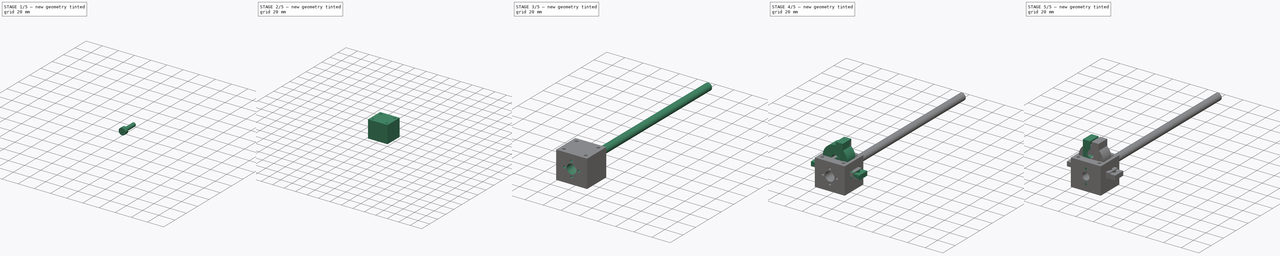
[diagram: build sequence overview — one tinted view per stage of 5, left to right]
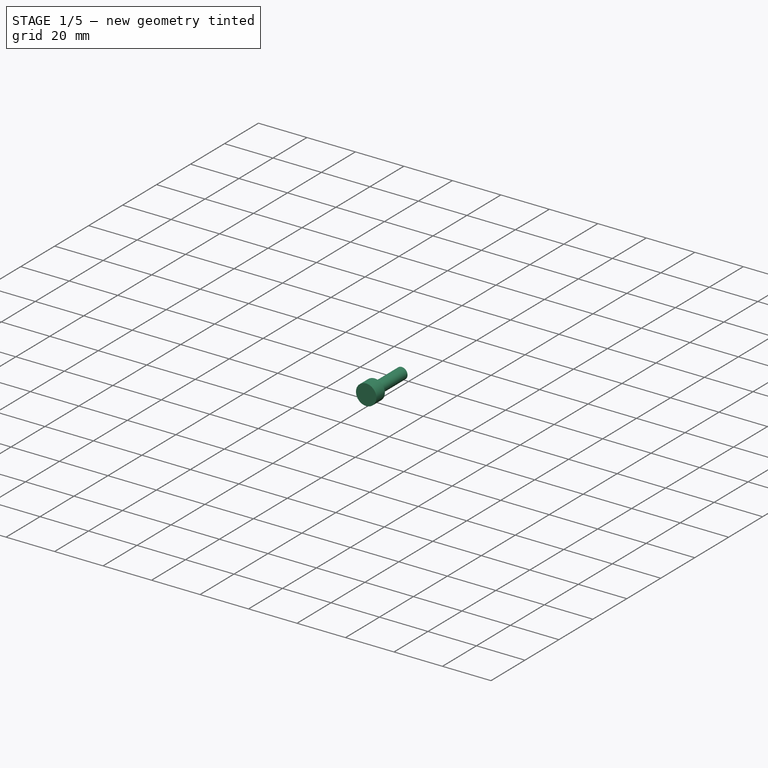
[diagram: stage 1 of 5 — iso view after this stage's code; geometry added in this stage tinted green]
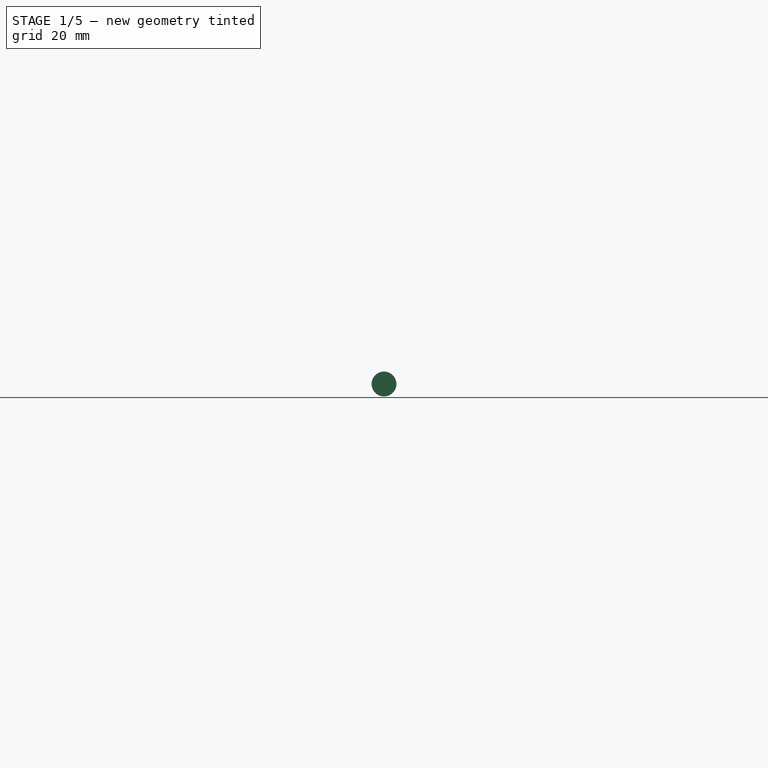
[diagram: stage 1 of 5 — front view after this stage's code; geometry added in this stage tinted green]
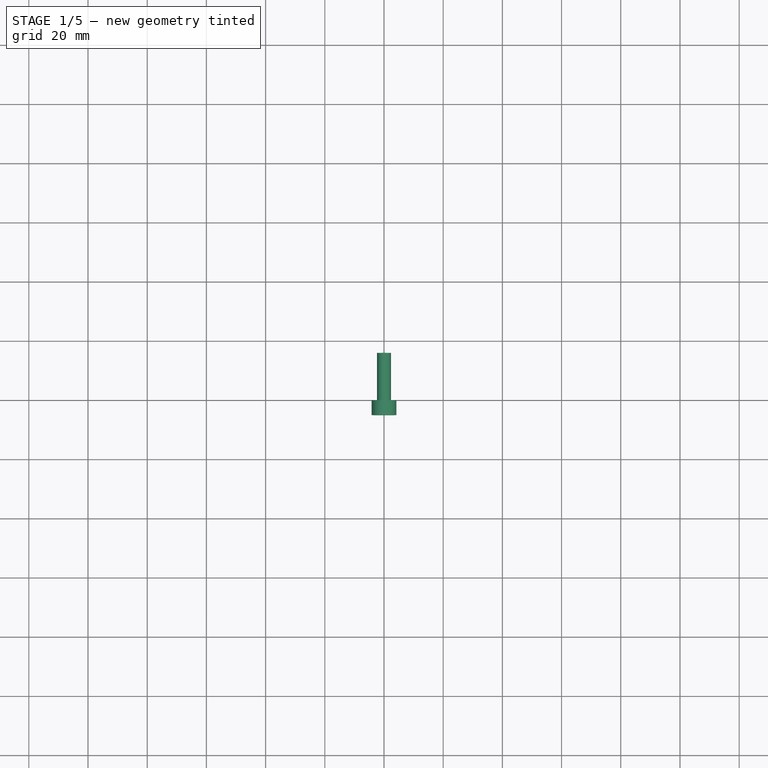
[diagram: stage 1 of 5 — top view after this stage's code; geometry added in this stage tinted green]
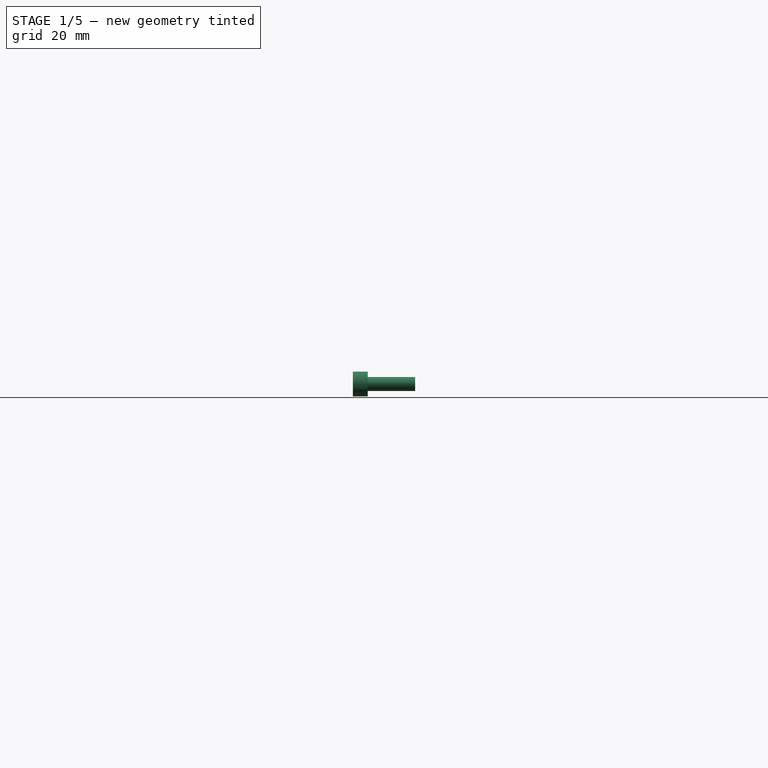
[diagram: stage 1 of 5 — right view after this stage's code; geometry added in this stage tinted green]
FCSTD DOCUMENT  (FreeCAD 1.0R39319 (Git))
Label: basic-parts
License: CERN Open Hardware Licence permissive
LicenseURL: https://cern-ohl.web.cern.ch/
objects: Sketcher::SketchObject×19, PartDesign::Body×12, App::Part×10, Spreadsheet::Sheet×9, PartDesign::Revolution×8, PartDesign::Pad×4, PartDesign::Hole×4, PartDesign::Mirrored×3, PartDesign::Pocket×3, Part::Cylinder×2
note: 115 computed .brp shape members not serialized (recipe doc carries the construction recipe); baked Part::Feature solids carry a one-line shape summary decoded from their .brp

FEATURE [PartDesign::Body] Body231  label="M3 hex screw 12mm"
  AllowCompound = false
  Group = -> [Sketch732,Revolution002]
  Origin = -> Origin287
  Tip = -> Revolution002
FEATURE [Spreadsheet::Sheet] Spreadsheet013  label="M3 hex screw params"
  cells = A1='shaft diameter; B1==2.8 mm; A2='head height; B2==3 mm; A3='head width; B3==5.5 mm
FEATURE [Sketcher::SketchObject] Sketch734
  ArcFitTolerance = 1e-06
  AttachmentSupport = -> [XY_Plane295]
  FullyConstrained = true
  MakeInternals = false
  MapMode = 5
  expr: Constraints[14] = <<M4 hex screw params>>.B1 / 2
  expr: Constraints[16] = <<M4 hex screw params>>.B3 / 2
  expr: Constraints[17] = <<M4 hex screw params>>.B2
  sketch-geometry (6):
    g0: LineSegment StartX=0 StartY=-4 StartZ=0 EndX=0 EndY=10 EndZ=0
    g1: LineSegment StartX=0 StartY=10 StartZ=0 EndX=1.95 EndY=10 EndZ=0
    g2: LineSegment StartX=1.95 StartY=10 StartZ=0 EndX=1.95 EndY=0 EndZ=0
    g3: LineSegment StartX=1.95 StartY=0 StartZ=0 EndX=3.375 EndY=0 EndZ=0
    g4: LineSegment StartX=3.375 StartY=0 StartZ=0 EndX=3.375 EndY=-4 EndZ=0
    g5: LineSegment StartX=3.375 StartY=-4 StartZ=0 EndX=0 EndY=-4 EndZ=0
  constraints (18):
    c: PointOnObject(g0,g-2)
    c: PointOnObject(g0,g-2)
    c: Coincident(g1,g0)
    c: Horizontal(g1)
    c: Coincident(g2,g1)
    c: PointOnObject(g2,g-1)
    c: Vertical(g2)
    c: Coincident(g3,g2)
    c: PointOnObject(g3,g-1)
    c: Coincident(g4,g3)
    c: Coincident(g5,g4)
    c: Coincident(g5,g0)
    c: Horizontal(g5)
    c: Vertical(g4)
    c: DistanceX(g1) = 1.95
    c: Distance(g2) = 10
    c: Distance(g5) = 3.375
    c: Distance(g4) = 4
FEATURE [PartDesign::Revolution] Revolution003
  Angle = 360
  Angle2 = 60
  Axis = (0,1,0)
  Base = (0,0,0)
  Profile = -> Sketch734
  ReferenceAxis = -> Sketch734 [V_Axis]
  Refine = true
  Reversed = true
  Suppressed = false
  Type = 0
FEATURE [PartDesign::Body] Body235  label="M4 hex screw 10mm"
  AllowCompound = false
  Group = -> [Sketch734,Revolution003]
  Origin = -> Origin295
  Tip = -> Revolution003
FEATURE [Spreadsheet::Sheet] Spreadsheet014  label="M4 hex screw params"
  cells = A1='shaft diameter; B1==3.9 mm; A2='head height; B2==4 mm; A3='head width; B3==6.75 mm
FEATURE [App::Part] Part025  label="M4 hex screw"
  Group = -> [Body235,Spreadsheet014]
  Origin = -> Origin293
FEATURE [Sketcher::SketchObject] Sketch735
  ArcFitTolerance = 1e-06
  AttachmentSupport = -> [XY_Plane296]
  FullyConstrained = true
  MakeInternals = false
  MapMode = 5
  expr: Constraints[14] = <<M5 hex screw params>>.B1 / 2
  expr: Constraints[16] = <<M5 hex screw params>>.B3 / 2
  expr: Constraints[17] = <<M5 hex screw params>>.B2
  sketch-geometry (6):
    g0: LineSegment StartX=0 StartY=-5 StartZ=0 EndX=0 EndY=16 EndZ=0
    g1: LineSegment StartX=0 StartY=16 StartZ=0 EndX=2.35 EndY=16 EndZ=0
    g2: LineSegment StartX=2.35 StartY=16 StartZ=0 EndX=2.35 EndY=0 EndZ=0
    g3: LineSegment StartX=2.35 StartY=0 StartZ=0 EndX=4.2 EndY=0 EndZ=0
    g4: LineSegment StartX=4.2 StartY=0 StartZ=0 EndX=4.2 EndY=-5 EndZ=0
    g5: LineSegment StartX=4.2 StartY=-5 StartZ=0 EndX=0 EndY=-5 EndZ=0
  constraints (18):
    c: PointOnObject(g0,g-2)
    c: PointOnObject(g0,g-2)
    c: Coincident(g1,g0)
    c: Horizontal(g1)
    c: Coincident(g2,g1)
    c: PointOnObject(g2,g-1)
    c: Vertical(g2)
    c: Coincident(g3,g2)
    c: PointOnObject(g3,g-1)
    c: Coincident(g4,g3)
    c: Coincident(g5,g4)
    c: Coincident(g5,g0)
    c: Horizontal(g5)
    c: Vertical(g4)
    c: DistanceX(g1) = 2.35
    c: Distance(g2) = 16
    c: Distance(g5) = 4.2
    c: Distance(g4) = 5
FEATURE [PartDesign::Revolution] Revolution004
  Angle = 360
  Angle2 = 60
  Axis = (0,1,0)
  Base = (0,0,0)
  Profile = -> Sketch735
  ReferenceAxis = -> Sketch735 [V_Axis]
  Refine = true
  Reversed = true
  Suppressed = false
  Type = 0
FEATURE [PartDesign::Body] Body236  label="M5 hex screw 16mm"
  AllowCompound = false
  Group = -> [Sketch735,Revolution004]
  Origin = -> Origin296
  Tip = -> Revolution004
FEATURE [Spreadsheet::Sheet] Spreadsheet015  label="M5 hex screw params"
  cells = A1='shaft diameter; B1==4.7 mm; A2='head height; B2==5 mm; A3='head width; B3==8.4 mm
FEATURE [App::Part] Part026  label="M5 hex screw"
  Group = -> [Body236,Spreadsheet015]
  Origin = -> Origin294
FEATURE [Sketcher::SketchObject] Sketch736
  ArcFitTolerance = 1e-06
  AttachmentSupport = -> [XY_Plane297]
  FullyConstrained = true
  MakeInternals = false
  MapMode = 5
  expr: Constraints[14] = <<M2.5 hex screw params>>.B1 / 2
  expr: Constraints[16] = <<M2.5 hex screw params>>.B3 / 2
  expr: Constraints[17] = <<M2.5 hex screw params>>.B2
  sketch-geometry (6):
    g0: LineSegment StartX=0 StartY=-2.5 StartZ=0 EndX=0 EndY=12 EndZ=0
    g1: LineSegment StartX=0 StartY=12 StartZ=0 EndX=1.15 EndY=12 EndZ=0
    g2: LineSegment StartX=1.15 StartY=12 StartZ=0 EndX=1.15 EndY=0 EndZ=0
    g3: LineSegment StartX=1.15 StartY=0 StartZ=0 EndX=2.15 EndY=0 EndZ=0
    g4: LineSegment StartX=2.15 StartY=0 StartZ=0 EndX=2.15 EndY=-2.5 EndZ=0
    g5: LineSegment StartX=2.15 StartY=-2.5 StartZ=0 EndX=0 EndY=-2.5 EndZ=0
  constraints (18):
    c: PointOnObject(g0,g-2)
    c: PointOnObject(g0,g-2)
    c: Coincident(g1,g0)
    c: Horizontal(g1)
    c: Coincident(g2,g1)
    c: PointOnObject(g2,g-1)
    c: Vertical(g2)
    c: Coincident(g3,g2)
    c: PointOnObject(g3,g-1)
    c: Coincident(g4,g3)
    c: Coincident(g5,g4)
    c: Coincident(g5,g0)
    c: Horizontal(g5)
    c: Vertical(g4)
    c: DistanceX(g1) = 1.15
    c: Distance(g2) = 12
    c: Distance(g5) = 2.15
    c: Distance(g4) = 2.5
FEATURE [PartDesign::Revolution] Revolution005
  Angle = 360
  Angle2 = 60
  Axis = (0,1,0)
  Base = (0,0,0)
  Profile = -> Sketch736
  ReferenceAxis = -> Sketch736 [V_Axis]
  Refine = true
  Reversed = true
  Suppressed = false
  Type = 0
FEATURE [PartDesign::Body] Body237  label="M2.5 hex screw 12mm"
  AllowCompound = false
  Group = -> [Sketch736,Revolution005]
  Origin = -> Origin297
  Tip = -> Revolution005
FEATURE [Spreadsheet::Sheet] Spreadsheet016  label="M2.5 hex screw params"
  cells = A1='shaft diameter; B1==2.3 mm; A2='head height; B2==2.5 mm; A3='head width; B3==4.3 mm
FEATURE [Sketcher::SketchObject] Sketch737
  ArcFitTolerance = 1e-06
  AttachmentSupport = -> [XY_Plane298]
  FullyConstrained = true
  MakeInternals = false
  MapMode = 5
  expr: Constraints[14] = <<M2.5 hex screw params>>.B1 / 2
  expr: Constraints[16] = <<M2.5 hex screw params>>.B3 / 2
  expr: Constraints[17] = <<M2.5 hex screw params>>.B2
  sketch-geometry (6):
    g0: LineSegment StartX=0 StartY=-2.5 StartZ=0 EndX=0 EndY=8 EndZ=0
    g1: LineSegment StartX=0 StartY=8 StartZ=0 EndX=1.15 EndY=8 EndZ=0
    g2: LineSegment StartX=1.15 StartY=8 StartZ=0 EndX=1.15 EndY=0 EndZ=0
    g3: LineSegment StartX=1.15 StartY=0 StartZ=0 EndX=2.15 EndY=0 EndZ=0
    g4: LineSegment StartX=2.15 StartY=0 StartZ=0 EndX=2.15 EndY=-2.5 EndZ=0
    g5: LineSegment StartX=2.15 StartY=-2.5 StartZ=0 EndX=0 EndY=-2.5 EndZ=0
  constraints (18):
    c: PointOnObject(g0,g-2)
    c: PointOnObject(g0,g-2)
    c: Coincident(g1,g0)
    c: Horizontal(g1)
    c: Coincident(g2,g1)
    c: PointOnObject(g2,g-1)
    c: Vertical(g2)
    c: Coincident(g3,g2)
    c: PointOnObject(g3,g-1)
    c: Coincident(g4,g3)
    c: Coincident(g5,g4)
    c: Coincident(g5,g0)
    c: Horizontal(g5)
    c: Vertical(g4)
    c: DistanceX(g1) = 1.15
    c: Distance(g2) = 8
    c: Distance(g5) = 2.15
    c: Distance(g4) = 2.5
FEATURE [PartDesign::Revolution] Revolution006
  Angle = 360
  Angle2 = 60
  Axis = (0,1,0)
  Base = (0,0,0)
  Profile = -> Sketch737
  ReferenceAxis = -> Sketch737 [V_Axis]
  Refine = true
  Reversed = true
  Suppressed = false
  Type = 0
FEATURE [PartDesign::Body] Body238  label="M2.5 hex screw 8mm"
  AllowCompound = false
  Group = -> [Sketch737,Revolution006]
  Origin = -> Origin298
  Tip = -> Revolution006
FEATURE [App::Part] Part024  label="M2.5 hex screw"
  Group = -> [Body237,Spreadsheet016,Body238]
  Origin = -> Origin292
FEATURE [Sketcher::SketchObject] Sketch738
  ArcFitTolerance = 1e-06
  AttachmentSupport = -> [XY_Plane299]
  FullyConstrained = true
  MakeInternals = false
  MapMode = 5
  expr: Constraints[14] = <<M3 hex screw params>>.B1 / 2
  expr: Constraints[16] = <<M3 hex screw params>>.B3 / 2
  expr: Constraints[17] = <<M3 hex screw params>>.B2
  sketch-geometry (6):
    g0: LineSegment StartX=0 StartY=-3 StartZ=0 EndX=0 EndY=8 EndZ=0
    g1: LineSegment StartX=0 StartY=8 StartZ=0 EndX=1.4 EndY=8 EndZ=0
    g2: LineSegment StartX=1.4 StartY=8 StartZ=0 EndX=1.4 EndY=0 EndZ=0
    g3: LineSegment StartX=1.4 StartY=0 StartZ=0 EndX=2.75 EndY=0 EndZ=0
    g4: LineSegment StartX=2.75 StartY=0 StartZ=0 EndX=2.75 EndY=-3 EndZ=0
    g5: LineSegment StartX=2.75 StartY=-3 StartZ=0 EndX=0 EndY=-3 EndZ=0
  constraints (18):
    c: PointOnObject(g0,g-2)
    c: PointOnObject(g0,g-2)
    c: Coincident(g1,g0)
    c: Horizontal(g1)
    c: Coincident(g2,g1)
    c: PointOnObject(g2,g-1)
    c: Vertical(g2)
    c: Coincident(g3,g2)
    c: PointOnObject(g3,g-1)
    c: Coincident(g4,g3)
    c: Coincident(g5,g4)
    c: Coincident(g5,g0)
    c: Horizontal(g5)
    c: Vertical(g4)
    c: DistanceX(g1) = 1.4
    c: Distance(g2) = 8
    c: Distance(g5) = 2.75
    c: Distance(g4) = 3
FEATURE [PartDesign::Revolution] Revolution007
  Angle = 360
  Angle2 = 60
  Axis = (0,1,0)
  Base = (0,0,0)
  Profile = -> Sketch738
  ReferenceAxis = -> Sketch738 [V_Axis]
  Refine = true
  Reversed = true
  Suppressed = false
  Type = 0
FEATURE [PartDesign::Body] Body239  label="M3 hex screw 8mm"
  AllowCompound = false
  Group = -> [Sketch738,Revolution007]
  Origin = -> Origin299
  Tip = -> Revolution007
FEATURE [App::Part] Part023  label="M3 hex screw"
  Group = -> [Body231,Spreadsheet013,Body239]
  Origin = -> Origin291
FEATURE [App::Part] Part  label="hex screw"
  Group = -> [Part023,Part024,Part026,Part025]
  Origin = -> Origin286
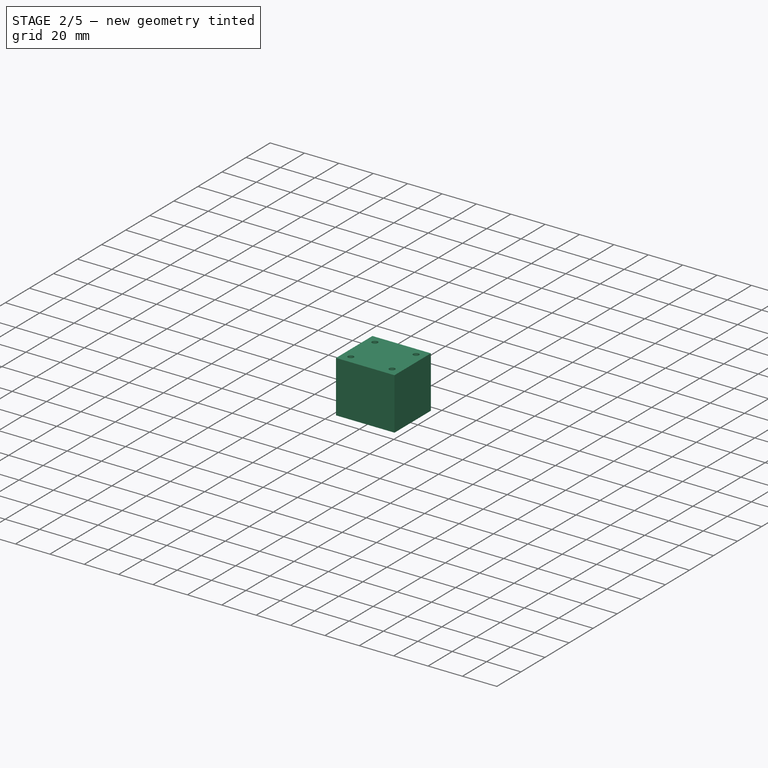
[diagram: stage 2 of 5 — iso view after this stage's code; geometry added in this stage tinted green]
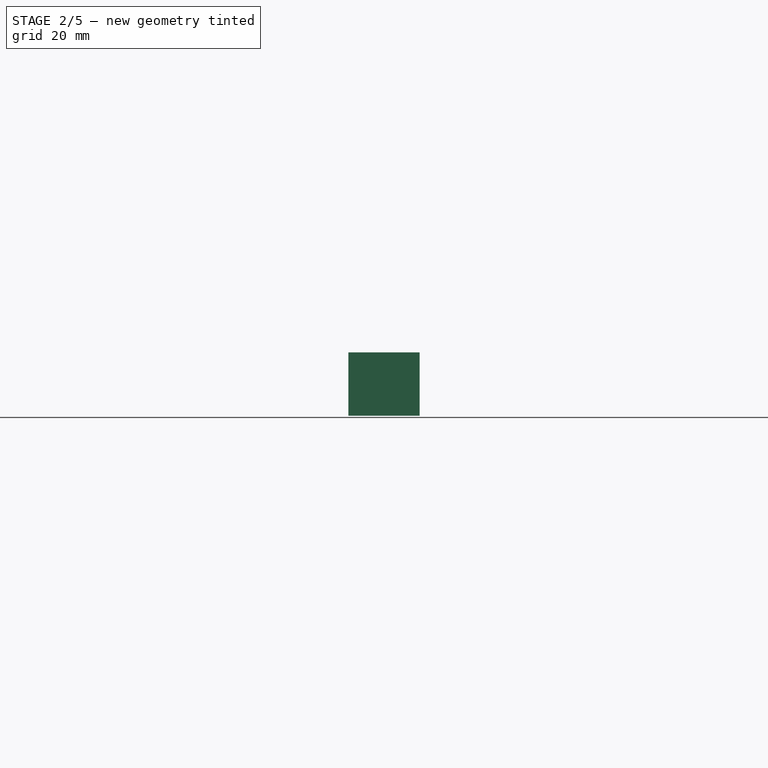
[diagram: stage 2 of 5 — front view after this stage's code; geometry added in this stage tinted green]
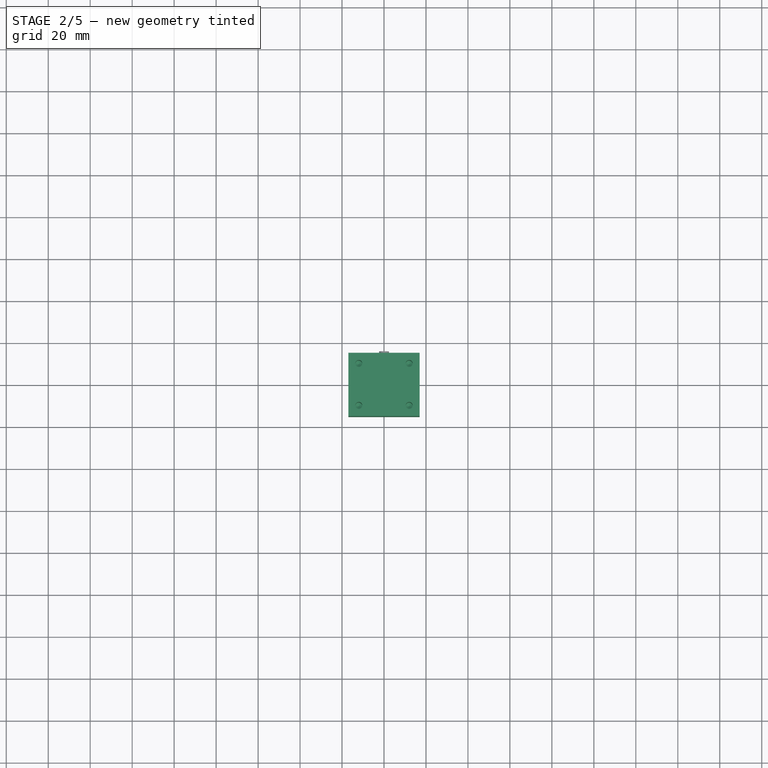
[diagram: stage 2 of 5 — top view after this stage's code; geometry added in this stage tinted green]
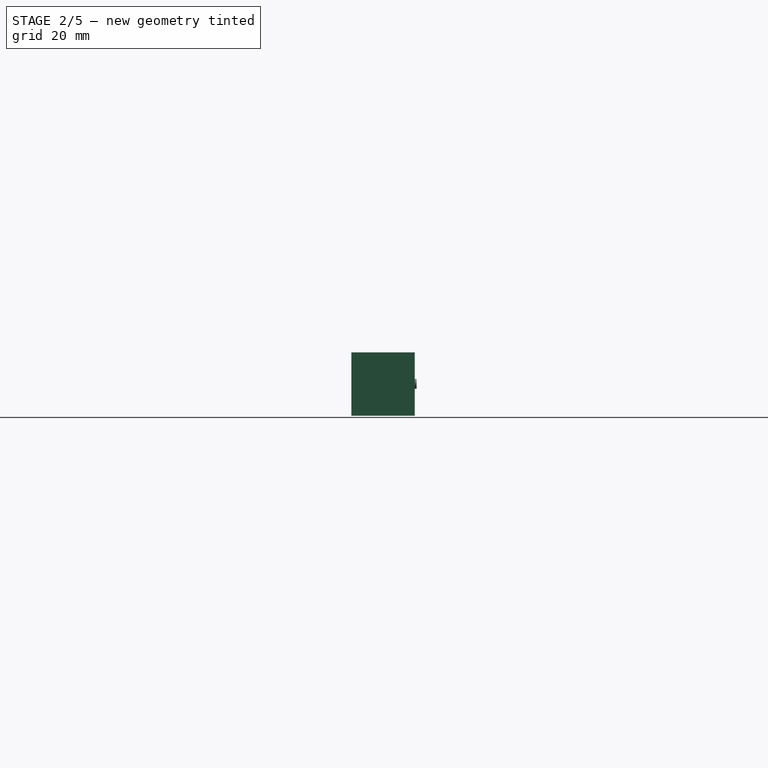
[diagram: stage 2 of 5 — right view after this stage's code; geometry added in this stage tinted green]
FEATURE [Sketcher::SketchObject] Sketch495
  ArcFitTolerance = 1e-06
  AttachmentSupport = -> [XY_Plane184]
  FullyConstrained = true
  MakeInternals = false
  MapMode = 5
  expr: Constraints[8] = <<T8 lead screw nut housing params>>.Width
  expr: Constraints[9] = <<T8 lead screw nut housing params>>.Length
  sketch-geometry (4):
    g0: LineSegment StartX=-17 StartY=15.1 StartZ=0 EndX=-17 EndY=-15.1 EndZ=0
    g1: LineSegment StartX=-17 StartY=-15.1 StartZ=0 EndX=17 EndY=-15.1 EndZ=0
    g2: LineSegment StartX=17 StartY=-15.1 StartZ=0 EndX=17 EndY=15.1 EndZ=0
    g3: LineSegment StartX=17 StartY=15.1 StartZ=0 EndX=-17 EndY=15.1 EndZ=0
  constraints (11):
    c: Coincident(g0,g1)
    c: Coincident(g1,g2)
    c: Coincident(g2,g3)
    c: Coincident(g3,g0)
    c: Vertical(g0)
    c: Vertical(g2)
    c: Horizontal(g1)
    c: Horizontal(g3)
    c: Distance(g0,g2) = 34
    c: Distance(g1,g3) = 30.2
    c: Symmetric(g0,g1,g-1)
FEATURE [PartDesign::Pad] Pad219
  Direction = (0,0,1)
  Length = 15
  Length2 = 15.2
  Profile = -> Sketch495
  ReferenceAxis = -> Sketch495 [N_Axis]
  Refine = true
  Suppressed = false
  Type = 4
  expr: Length = <<T8 lead screw nut housing params>>.TopToCenterHole
  expr: Length2 = <<T8 lead screw nut housing params>>.Height - <<T8 lead screw nut housing params>>.TopToCenterHole
FEATURE [PartDesign::Body] Body  label="SCS8UU Linear Bearing Block"
  AllowCompound = false
  Group = -> [Sketch,Pad310,Mirrored002,Sketch724,Hole]
  Origin = -> Origin001
  Tip = -> Hole
FEATURE [Sketcher::SketchObject] Sketch726
  ArcFitTolerance = 1e-06
  AttachmentSupport = -> [Pad219]
  FullyConstrained = true
  MakeInternals = false
  MapMode = 5
  Placement = pos=(0,0,15) rot=(0,0,1;0rad)
  expr: Constraints[10] = <<T8 lead screw nut housing params>>.TopHoleYD
  expr: Constraints[3] = <<T8 lead screw nut housing params>>.TopHoleDiameter
  expr: Constraints[9] = <<T8 lead screw nut housing params>>.TopHoleXD
  sketch-geometry (4):
    g0: Circle CenterX=-12 CenterY=10 CenterZ=0 NormalX=0 NormalY=0 NormalZ=1 AngleXU=0 Radius=2.1
    g1: Circle CenterX=12 CenterY=10 CenterZ=0 NormalX=0 NormalY=0 NormalZ=1 AngleXU=0 Radius=2.1
    g2: Circle CenterX=12 CenterY=-10 CenterZ=0 NormalX=0 NormalY=0 NormalZ=1 AngleXU=0 Radius=2.1
    g3: Circle CenterX=-12 CenterY=-10 CenterZ=0 NormalX=0 NormalY=0 NormalZ=1 AngleXU=0 Radius=2.1
  constraints (11):
    c: Equal(g0,g1)
    c: Equal(g0,g2)
    c: Equal(g0,g3)
    c: Diameter(g0) = 4.2
    c: Symmetric(g1,g3,g-1)
    c: Horizontal(g0,g1)
    c: Vertical(g1,g2)
    c: Horizontal(g2,g3)
    c: Vertical(g0,g3)
    c: Distance(g0,g1) = 24
    c: DistanceY(g2,g1) = 20
FEATURE [PartDesign::Hole] Hole001
  BaseFeature = -> Pad219
  CustomThreadClearance = 0
  Depth = 20
  DepthType = 0
  Diameter = 3.3
  DrillForDepth = false
  DrillPoint = 1
  DrillPointAngle = 118
  HoleCutCountersinkAngle = 90
  HoleCutCustomValues = false
  HoleCutDepth = 0
  HoleCutDiameter = 6.1
  HoleCutType = 0
  ModelThread = false
  Profile = -> Sketch726
  Refine = true
  Suppressed = false
  Tapered = false
  TaperedAngle = 90
  ThreadClass = 0
  ThreadDepth = 20
  ThreadDepthType = 0
  ThreadDirection = 0
  ThreadFit = 0
  ThreadSize = 11
  ThreadType = 1
  Threaded = true
  UseCustomThreadClearance = false
  expr: Depth = <<T8 lead screw nut housing params>>.TopHoleDepth
FEATURE [PartDesign::Body] Body150  label="T8 lead screw nut housing bracket"
  AllowCompound = false
  Group = -> [Sketch495,Pad219,Sketch726,Hole001,Sketch727,Pocket255,Sketch728,Hole002]
  Origin = -> Origin184
  Placement = pos=(0,0,16) rot=(0,0,1;0rad)
  Tip = -> Hole002
  expr: .Placement.Base.z = <<KP08 Bearing Bracket Params>>.LeadScrewZ
FEATURE [Sketcher::SketchObject] Sketch729
  ArcFitTolerance = 1e-06
  AttachmentSupport = -> [YZ_Plane]
  FullyConstrained = true
  MakeInternals = false
  MapMode = 5
  Placement = pos=(0,0,0) rot=(0.57735,0.57735,0.57735;2.0944rad)
  sketch-geometry (8):
    g0: LineSegment StartX=0 StartY=10.85 StartZ=0 EndX=3.4 EndY=10.85 EndZ=0
    g1: LineSegment StartX=3.4 StartY=10.85 StartZ=0 EndX=3.4 EndY=5 EndZ=0
    g2: LineSegment StartX=3.4 StartY=5 StartZ=0 EndX=13.4 EndY=5 EndZ=0
    g3: LineSegment StartX=13.4 StartY=5 StartZ=0 EndX=13.4 EndY=3.1 EndZ=0
    g4: LineSegment StartX=13.4 StartY=3.1 StartZ=0 EndX=-1.6 EndY=3.1 EndZ=0
    g5: LineSegment StartX=-1.6 StartY=5.1 StartZ=0 EndX=0 EndY=5.1 EndZ=0
    g6: LineSegment StartX=0 StartY=10.85 StartZ=0 EndX=0 EndY=5.1 EndZ=0
    g7: LineSegment StartX=-1.6 StartY=5.1 StartZ=0 EndX=-1.6 EndY=3.1 EndZ=0
  constraints (24):
    c: Distance(g0) = 3.4
    c: PointOnObject(g0,g-2)
    c: Horizontal(g0)
    c: Coincident(g1,g0)
    c: Vertical(g1)
    c: Coincident(g2,g1)
    c: Horizontal(g2)
    c: Coincident(g3,g2)
    c: Coincident(g4,g3)
    c: Horizontal(g4)
    c: PointOnObject(g5,g-2)
    c: Horizontal(g5)
    c: Coincident(g6,g0)
    c: Coincident(g6,g5)
    c: Coincident(g7,g5)
    c: Coincident(g7,g4)
    c: Vertical(g7)
    c: Vertical(g3)
    c: Distance(g2) = 10
    c: DistanceY(g2) = 5
    c: Distance(g4) = 15
    c: DistanceY(g5) = 5.1
    c: DistanceY(g0) = 10.85
    c: Distance(g3) = 1.9
FEATURE [PartDesign::Revolution] Revolution001
  Angle = 360
  Angle2 = 60
  Axis = (1e-16,1,-1e-16)
  Base = (0,0,0)
  Placement = pos=(0,0,0) rot=(1,1,1;2.0944rad)
  Profile = -> Sketch729
  ReferenceAxis = -> Y_Axis
  Refine = true
  Suppressed = false
  Type = 0
FEATURE [Sketcher::SketchObject] Sketch730
  ArcFitTolerance = 1e-06
  AttachmentSupport = -> [Revolution001]
  FullyConstrained = true
  MakeInternals = false
  MapMode = 5
  Placement = pos=(0,-3.6e-15,0) rot=(0.57735,0.57735,-0.57735;2.0944rad)
  expr: Constraints[8] = <<T8 lead screw nut housing params>>.BrassNutHoleDistance
  expr: Constraints[9] = <<T8 lead screw nut housing params>>.BrassNutHoleDistance
  sketch-geometry (4):
    g0: Circle CenterX=0 CenterY=8 CenterZ=0 NormalX=0 NormalY=0 NormalZ=1 AngleXU=0 Radius=1.6
    g1: Circle CenterX=8 CenterY=0 CenterZ=0 NormalX=0 NormalY=0 NormalZ=1 AngleXU=0 Radius=1.6
    g2: Circle CenterX=0 CenterY=-8 CenterZ=0 NormalX=0 NormalY=0 NormalZ=1 AngleXU=0 Radius=1.6
    g3: Circle CenterX=-8 CenterY=0 CenterZ=0 NormalX=0 NormalY=0 NormalZ=1 AngleXU=0 Radius=1.6
  constraints (10):
    c: PointOnObject(g0,g-2)
    c: PointOnObject(g1,g-1)
    c: Symmetric(g0,g2,g-1)
    c: Symmetric(g1,g3,g-2)
    c: Equal(g0,g1)
    c: Equal(g0,g2)
    c: Equal(g0,g3)
    c: Diameter(g0) = 3.2
    c: DistanceX(g1) = 8
    c: DistanceY(g0) = 8
FEATURE [PartDesign::Hole] Hole003
  BaseFeature = -> Revolution001
  CustomThreadClearance = 0
  Depth = 25
  DepthType = 0
  Diameter = 3.4
  DrillForDepth = false
  DrillPoint = 1
  DrillPointAngle = 118
  HoleCutCountersinkAngle = 90
  HoleCutCustomValues = false
  HoleCutDepth = 0
  HoleCutDiameter = 6.1
  HoleCutType = 0
  ModelThread = false
  Placement = pos=(0,0,0) rot=(1,1,1;2.0944rad)
  Profile = -> Sketch730
  Refine = true
  Suppressed = false
  Tapered = false
  TaperedAngle = 90
  ThreadClass = 0
  ThreadDepth = 25
  ThreadDepthType = 0
  ThreadDirection = 0
  ThreadFit = 0
  ThreadSize = 9
  ThreadType = 1
  Threaded = false
  UseCustomThreadClearance = false
FEATURE [PartDesign::Body] Body230  label="T8 brass nut"
  AllowCompound = false
  Group = -> [Sketch729,Revolution001,Sketch730,Hole003]
  Origin = -> Origin
  Tip = -> Hole003
FEATURE [App::Part] Part001  label="T8 lead screw nut housing bracket Part"
  Group = -> [Body150,Body230,Spreadsheet011]
  Origin = -> Origin285
FEATURE [App::Part] Part019  label="T8 Lead Screw Set"
  Group = -> [Part020,Part021,Part022,Body227,Part001,Cylinder002,Cylinder,Spreadsheet012]
  Origin = -> Origin165
FEATURE [Sketcher::SketchObject] Sketch732
  ArcFitTolerance = 1e-06
  AttachmentSupport = -> [XY_Plane287]
  FullyConstrained = true
  MakeInternals = false
  MapMode = 5
  expr: Constraints[14] = <<M3 hex screw params>>.B1 / 2
  expr: Constraints[16] = <<M3 hex screw params>>.B3 / 2
  expr: Constraints[17] = <<M3 hex screw params>>.B2
  sketch-geometry (6):
    g0: LineSegment StartX=0 StartY=-3 StartZ=0 EndX=0 EndY=12 EndZ=0
    g1: LineSegment StartX=0 StartY=12 StartZ=0 EndX=1.4 EndY=12 EndZ=0
    g2: LineSegment StartX=1.4 StartY=12 StartZ=0 EndX=1.4 EndY=0 EndZ=0
    g3: LineSegment StartX=1.4 StartY=0 StartZ=0 EndX=2.75 EndY=0 EndZ=0
    g4: LineSegment StartX=2.75 StartY=0 StartZ=0 EndX=2.75 EndY=-3 EndZ=0
    g5: LineSegment StartX=2.75 StartY=-3 StartZ=0 EndX=0 EndY=-3 EndZ=0
  constraints (18):
    c: PointOnObject(g0,g-2)
    c: PointOnObject(g0,g-2)
    c: Coincident(g1,g0)
    c: Horizontal(g1)
    c: Coincident(g2,g1)
    c: PointOnObject(g2,g-1)
    c: Vertical(g2)
    c: Coincident(g3,g2)
    c: PointOnObject(g3,g-1)
    c: Coincident(g4,g3)
    c: Coincident(g5,g4)
    c: Coincident(g5,g0)
    c: Horizontal(g5)
    c: Vertical(g4)
    c: DistanceX(g1) = 1.4
    c: Distance(g2) = 12
    c: Distance(g5) = 2.75
    c: Distance(g4) = 3
FEATURE [PartDesign::Revolution] Revolution002
  Angle = 360
  Angle2 = 60
  Axis = (0,1,0)
  Base = (0,0,0)
  Profile = -> Sketch732
  ReferenceAxis = -> Sketch732 [V_Axis]
  Refine = true
  Reversed = true
  Suppressed = false
  Type = 0
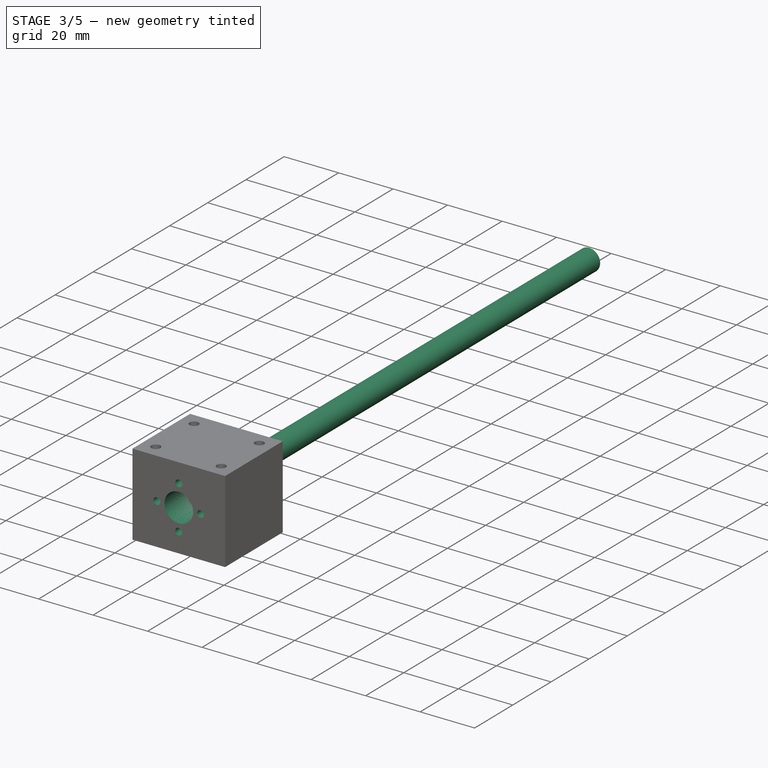
[diagram: stage 3 of 5 — iso view after this stage's code; geometry added in this stage tinted green]
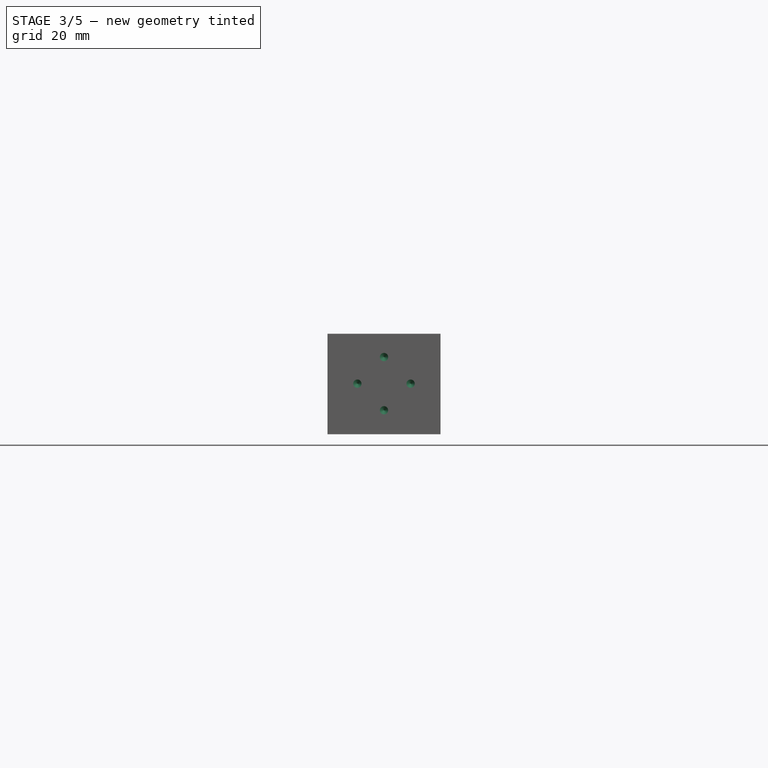
[diagram: stage 3 of 5 — front view after this stage's code; geometry added in this stage tinted green]
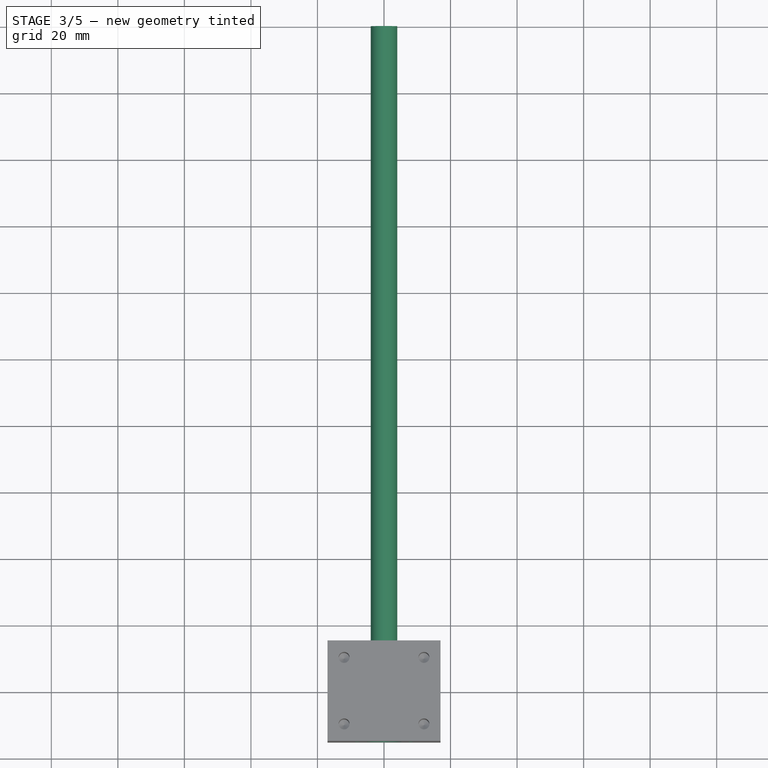
[diagram: stage 3 of 5 — top view after this stage's code; geometry added in this stage tinted green]
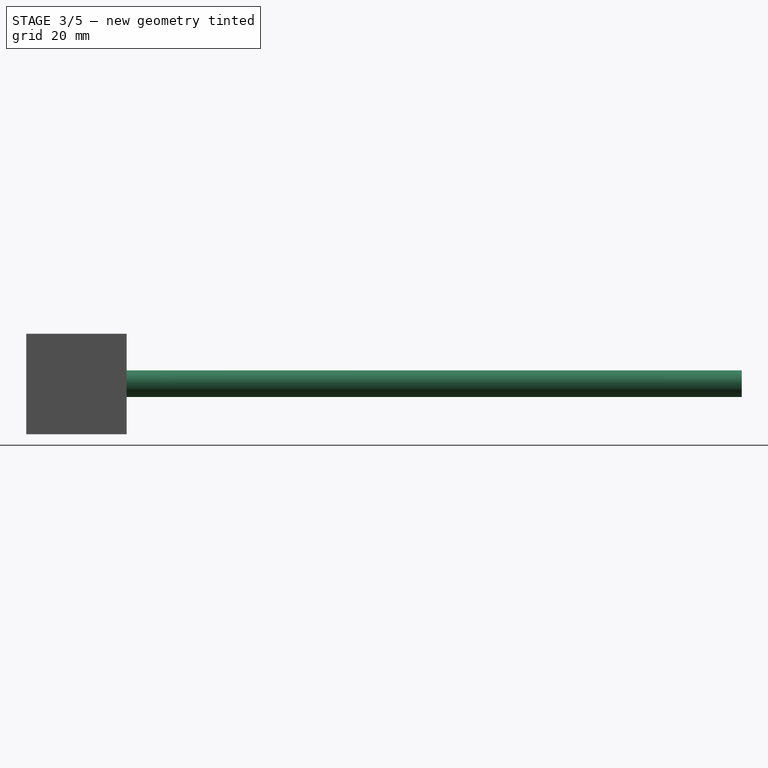
[diagram: stage 3 of 5 — right view after this stage's code; geometry added in this stage tinted green]
FEATURE [Spreadsheet::Sheet] Spreadsheet  label="SK8 Linear Shaft Support Params"
  cells = A1='SK8 Linear Shaft Support; A2='height; B2(Height)==32.8 mm; A3='width; B3(Width)==42 mm; A4='padding; B4(Padding)==14 mm; A5='hole height; B5(HoleHeight)==20 mm; A6='bottom thickness; B6(BottomThickness)==6 mm; A8='top width; B8(TopWidth)==18 mm; A9='center gap width; B9(CenterGapWidth)==1.8 mm; A10='bottom hole diameter; B10(BottomHoleDiameter)==5.6 mm; A11='bottom hole x; B11(BottomHoleX)==16 mm; A12='shaft diameter; B12(ShaftD)==8 mm
FEATURE [App::Part] Part020  label="SK8 Linear Shaft Support Part"
  Group = -> [Spreadsheet,Body228]
  Origin = -> Origin171
FEATURE [Spreadsheet::Sheet] Spreadsheet009  label="KP08 Bearing Bracket Params"
  cells = A1='KP08 Bearing Bracket; D1='KP08 shim; A2='height; B2(Height)==29 mm; D2='thickness; E2(ShimThickness)==1 mm; A3='width; B3(Width)==55 mm; A4='hole x; B4(HoleX)==21 mm; A5='hole z; B5(HoleZ)==15 mm; A6='bottom thickness; B6(BottomThickness)==5 mm; A7='padding; B7(Padding)==13 mm; A8='shaft diameter; B8(ShaftDiameter)==8 mm; A9='bottom hole diameter; B9(BottomHoleDiameter)==5 mm; A10='bottom hole x; B10(BottomHoleX)==21 mm; A14='lead screw z; B14(LeadScrewZ)==HoleZ + ShimThickness
FEATURE [App::Part] Part022  label="KP08 Bearing Bracket Part"
  Group = -> [Spreadsheet009,Body229]
  Origin = -> Origin180
FEATURE [Spreadsheet::Sheet] Spreadsheet010  label="SCS8UU Linear Bearing Block Params"
  cells = A2='hole x distance; B2(HoleXD)==24 mm; A3='hole y distance; B3(HoleYD)==18 mm; A4='padding; B4(Padding)==30 mm; A5='center to hole z diff; B5(CenterToHoleZDiff)==11 mm; A6='shaft diameter; B6(ShaftD)==8 mm
FEATURE [App::Part] Part021  label="SCS8UU Linear Bearing Block Part"
  Group = -> [Body,Spreadsheet010]
  Origin = -> Origin173
FEATURE [Spreadsheet::Sheet] Spreadsheet011  label="T8 lead screw nut housing params"
  cells = A1='T8 nut housing; A2='width; B2(Width)==34 mm; A3='height; B3(Height)==30.2 mm; A4='length; B4(Length)==30.2 mm; A5='hole y distance; B5(TopHoleYD)==20 mm; A6='hole x distance; B6(TopHoleXD)==24 mm; A7='top to center hole; B7(TopToCenterHole)==15 mm; A8='center hole diameter; B8(CenterHoleDiameter)==10.5 mm; A9='top hole depth; B9(TopHoleDepth)==20 mm; A10='top hole diameter; B10(TopHoleDiameter)==4.2 mm; A12='brass nut hole distance; B12(BrassNutHoleDistance)==8 mm; A13='hole size; B13='M3; A14='hole depth; B14(BrassNutHoleDepth)==15 mm
FEATURE [Part::Cylinder] Cylinder002  label="T8 Lead Screw"
  Angle = 360
  AttacherType = Attacher::AttachEngine3D
  FirstAngle = 0
  Height = 200
  Placement = pos=(0,0,0) rot=(0,0.71,0.71;3.14159rad)
  Radius = 4
  SecondAngle = 0
  expr: Height = <<T8 lead screw set params>>.Length
FEATURE [Part::Cylinder] Cylinder  label="Chrome Plated Shaft 8mm"
  Angle = 360
  AttacherType = Attacher::AttachEngine3D
  FirstAngle = 0
  Height = 200
  Placement = pos=(0,0,0) rot=(0,0.71,0.71;3.14159rad)
  Radius = 4
  SecondAngle = 0
  expr: Height = <<T8 lead screw set params>>.Length
FEATURE [Spreadsheet::Sheet] Spreadsheet012  label="T8 lead screw set params"
  cells = A2='length; B2(Length)==200 mm; A3='pitch; B3==4 mm
FEATURE [Sketcher::SketchObject] Sketch727
  ArcFitTolerance = 1e-06
  AttachmentSupport = -> [Hole001]
  FullyConstrained = true
  MakeInternals = false
  MapMode = 5
  Placement = pos=(0,-15.1,0) rot=(1,0,0;1.5708rad)
  expr: Constraints[1] = <<T8 lead screw nut housing params>>.CenterHoleDiameter
  sketch-geometry (1):
    g0: Circle CenterX=0 CenterY=0 CenterZ=0 NormalX=0 NormalY=0 NormalZ=1 AngleXU=0 Radius=5.25
  constraints (2):
    c: Coincident(g0,g-1)
    c: Diameter(g0) = 10.5
FEATURE [PartDesign::Pocket] Pocket255
  BaseFeature = -> Hole001
  Direction = (0,1,-2e-16)
  Length = 0
  Length2 = 5
  Profile = -> Sketch727
  ReferenceAxis = -> Sketch727 [N_Axis]
  Refine = true
  Suppressed = false
  Type = 3
  UpToFace = -> Hole001 [Face2]
FEATURE [Sketcher::SketchObject] Sketch728
  ArcFitTolerance = 1e-06
  AttachmentSupport = -> [Pocket255]
  FullyConstrained = true
  MakeInternals = false
  MapMode = 5
  Placement = pos=(0,-15.1,0) rot=(1,0,0;1.5708rad)
  expr: Constraints[8] = <<T8 lead screw nut housing params>>.BrassNutHoleDistance
  expr: Constraints[9] = <<T8 lead screw nut housing params>>.BrassNutHoleDistance
  sketch-geometry (4):
    g0: Circle CenterX=0 CenterY=8 CenterZ=0 NormalX=0 NormalY=0 NormalZ=1 AngleXU=0 Radius=1.6
    g1: Circle CenterX=8 CenterY=0 CenterZ=0 NormalX=0 NormalY=0 NormalZ=1 AngleXU=0 Radius=1.6
    g2: Circle CenterX=0 CenterY=-8 CenterZ=0 NormalX=0 NormalY=0 NormalZ=1 AngleXU=0 Radius=1.6
    g3: Circle CenterX=-8 CenterY=0 CenterZ=0 NormalX=0 NormalY=0 NormalZ=1 AngleXU=0 Radius=1.6
  constraints (10):
    c: PointOnObject(g0,g-2)
    c: PointOnObject(g1,g-1)
    c: Symmetric(g0,g2,g-1)
    c: Symmetric(g3,g1,g-2)
    c: Equal(g0,g1)
    c: Equal(g0,g2)
    c: Equal(g0,g3)
    c: Diameter(g0) = 3.2
    c: DistanceX(g1) = 8
    c: DistanceY(g0) = 8
FEATURE [PartDesign::Hole] Hole002  label="T8 brass nut M3 holes"
  BaseFeature = -> Pocket255
  CustomThreadClearance = 0
  Depth = 15
  DepthType = 0
  Diameter = 2.5
  DrillForDepth = false
  DrillPoint = 1
  DrillPointAngle = 118
  HoleCutCountersinkAngle = 90
  HoleCutCustomValues = false
  HoleCutDepth = 0
  HoleCutDiameter = 6.1
  HoleCutType = 0
  ModelThread = false
  Profile = -> Sketch728
  Refine = true
  Suppressed = false
  Tapered = false
  TaperedAngle = 90
  ThreadClass = 0
  ThreadDepth = 15
  ThreadDepthType = 0
  ThreadDirection = 0
  ThreadFit = 0
  ThreadSize = 9
  ThreadType = 1
  Threaded = true
  UseCustomThreadClearance = false
  expr: Depth = <<T8 lead screw nut housing params>>.BrassNutHoleDepth
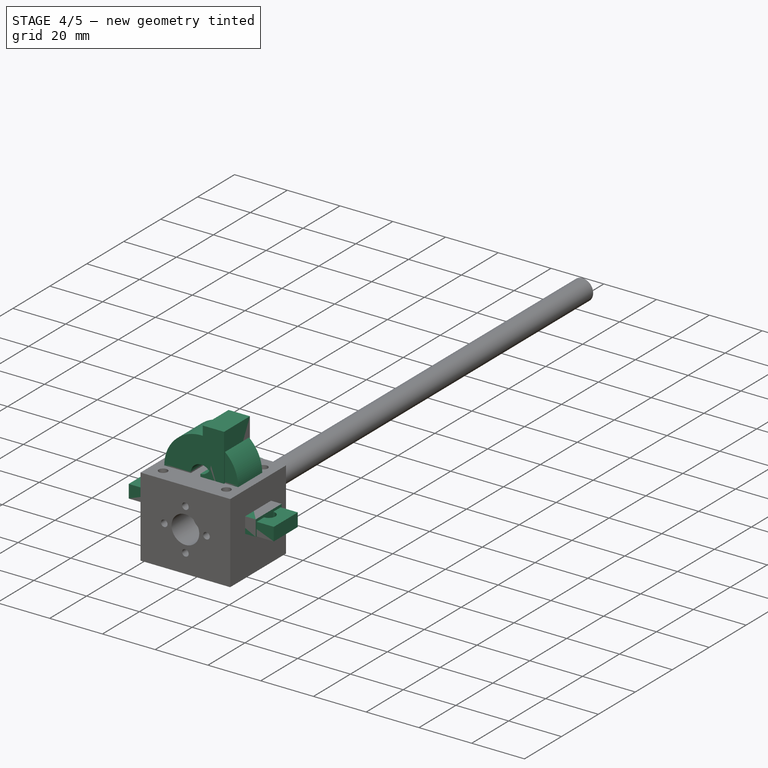
[diagram: stage 4 of 5 — iso view after this stage's code; geometry added in this stage tinted green]
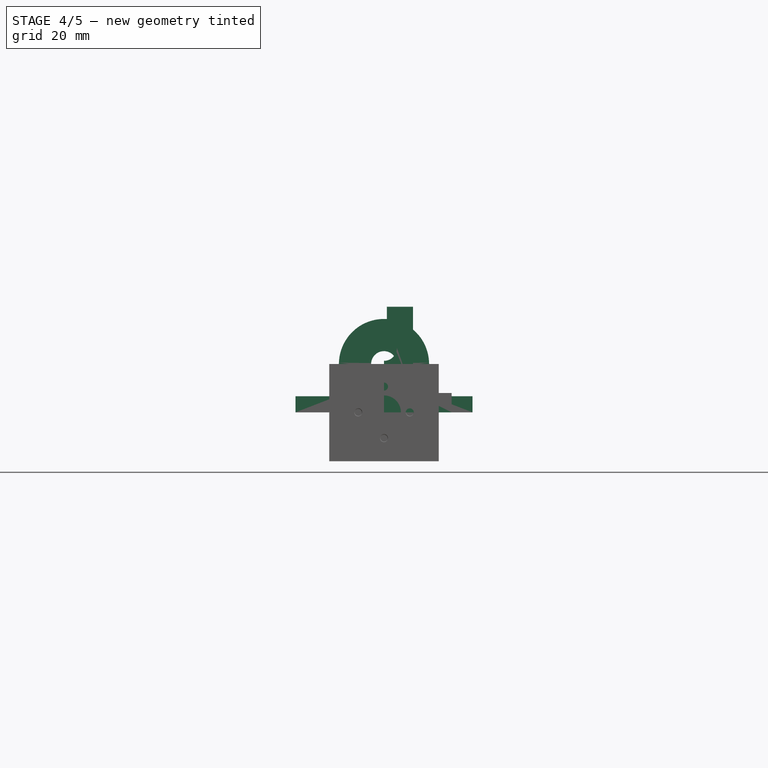
[diagram: stage 4 of 5 — front view after this stage's code; geometry added in this stage tinted green]
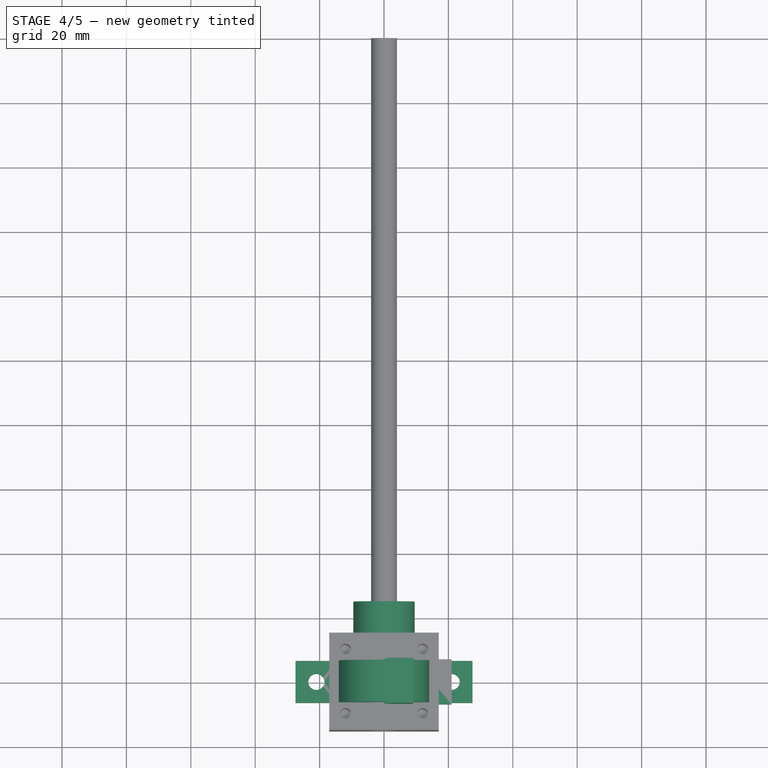
[diagram: stage 4 of 5 — top view after this stage's code; geometry added in this stage tinted green]
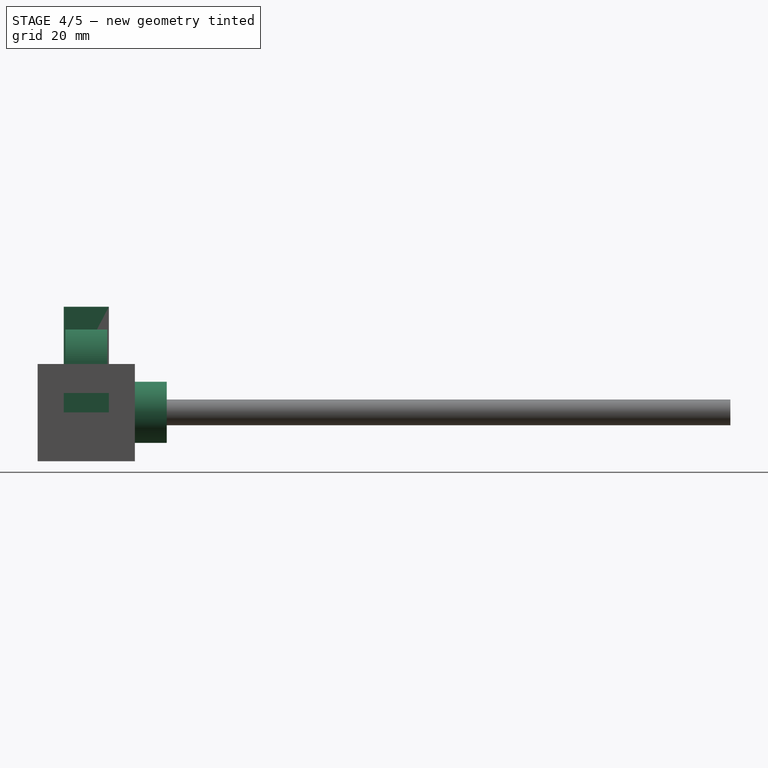
[diagram: stage 4 of 5 — right view after this stage's code; geometry added in this stage tinted green]
FEATURE [Sketcher::SketchObject] Sketch718
  ArcFitTolerance = 1e-06
  AttachmentSupport = -> [YZ_Plane281]
  FullyConstrained = true
  MakeInternals = false
  MapMode = 5
  Placement = pos=(0,0,0) rot=(0.57735,0.57735,0.57735;2.0944rad)
  sketch-geometry (6):
    g0: LineSegment StartX=0 StartY=9.5 StartZ=0 EndX=25 EndY=9.5 EndZ=0
    g1: LineSegment StartX=25 StartY=9.5 StartZ=0 EndX=25 EndY=4 EndZ=0
    g2: LineSegment StartX=25 StartY=4 StartZ=0 EndX=7 EndY=4 EndZ=0
    g3: LineSegment StartX=0 StartY=3 StartZ=0 EndX=0 EndY=9.5 EndZ=0
    g4: LineSegment StartX=0 StartY=3 StartZ=0 EndX=7 EndY=3 EndZ=0
    g5: LineSegment StartX=7 StartY=4 StartZ=0 EndX=7 EndY=3 EndZ=0
  constraints (18):
    c: Distance(g0) = 25
    c: PointOnObject(g0,g-2)
    c: Horizontal(g0)
    c: Coincident(g1,g0)
    c: Vertical(g1)
    c: Coincident(g2,g1)
    c: Horizontal(g2)
    c: Coincident(g3,g0)
    c: DistanceY(g0) = 9.5
    c: Horizontal(g4)
    c: Coincident(g3,g4)
    c: Vertical(g3)
    c: Coincident(g5,g2)
    c: Coincident(g5,g4)
    c: Vertical(g5)
    c: DistanceY(g1) = 4
    c: DistanceY(g4) = 3
    c: Distance(g4) = 7
FEATURE [PartDesign::Revolution] Revolution
  Angle = 360
  Angle2 = 60
  Axis = (1e-16,1,-1e-16)
  Base = (0,0,0)
  Placement = pos=(0,0,0) rot=(1,1,1;2.0944rad)
  Profile = -> Sketch718
  ReferenceAxis = -> Y_Axis281
  Refine = true
  Suppressed = false
  Type = 0
FEATURE [PartDesign::Body] Body227  label="D19xL25 aluminium flexible shaft coupling 6x8"
  AllowCompound = false
  Group = -> [Sketch718,Revolution]
  Origin = -> Origin281
  Tip = -> Revolution
FEATURE [Sketcher::SketchObject] Sketch719
  ArcFitTolerance = 1e-06
  AttachmentSupport = -> [XZ_Plane282]
  FullyConstrained = true
  MakeInternals = false
  MapMode = 5
  Placement = pos=(0,0,0) rot=(1,0,0;1.5708rad)
  expr: Constraints[17] = <<SK8 Linear Shaft Support Params>>.TopWidth / 2
  expr: Constraints[18] = <<SK8 Linear Shaft Support Params>>.Height
  expr: Constraints[19] = <<SK8 Linear Shaft Support Params>>.Width / 2
  expr: Constraints[20] = <<SK8 Linear Shaft Support Params>>.HoleHeight
  expr: Constraints[21] = <<SK8 Linear Shaft Support Params>>.BottomThickness
  expr: Constraints[22] = <<SK8 Linear Shaft Support Params>>.ShaftD
  expr: Constraints[23] = <<SK8 Linear Shaft Support Params>>.CenterGapWidth / 2
  sketch-geometry (8):
    g0: LineSegment StartX=0.9 StartY=32.8 StartZ=0 EndX=9 EndY=32.8 EndZ=0
    g1: LineSegment StartX=9 StartY=32.8 StartZ=0 EndX=9 EndY=6 EndZ=0
    g2: LineSegment StartX=9 StartY=6 StartZ=0 EndX=21 EndY=6 EndZ=0
    g3: LineSegment StartX=21 StartY=6 StartZ=0 EndX=21 EndY=0 EndZ=0
    g4: LineSegment StartX=21 StartY=0 StartZ=0 EndX=0 EndY=0 EndZ=0
    g5: LineSegment StartX=0 StartY=0 StartZ=0 EndX=-7e-16 EndY=16 EndZ=0
    g6: ArcOfCircle CenterX=0 CenterY=20 CenterZ=0 NormalX=0 NormalY=0 NormalZ=1 AngleXU=0 Radius=4 StartAngle=4.71239 EndAngle=7.62704
    g7: LineSegment StartX=0.9 StartY=32.8 StartZ=0 EndX=0.9 EndY=23.8974 EndZ=0
  constraints (24):
    c: Horizontal(g0)
    c: Coincident(g1,g0)
    c: Vertical(g1)
    c: Coincident(g2,g1)
    c: Horizontal(g2)
    c: Coincident(g3,g2)
    c: PointOnObject(g3,g-1)
    c: Vertical(g3)
    c: Coincident(g4,g3)
    c: Coincident(g4,g-1)
    c: Coincident(g5,g4)
    c: PointOnObject(g5,g-2)
    c: PointOnObject(g6,g-2)
    c: Coincident(g6,g5)
    c: Coincident(g7,g0)
    c: Coincident(g7,g6)
    c: Vertical(g7)
    c: DistanceX(g0) = 9
    c: DistanceY(g0) = 32.8
    c: DistanceX(g2) = 21
    c: DistanceY(g6) = 20
    c: DistanceY(g2) = 6
    c: Diameter(g6) = 8
    c: DistanceX(g0) = 0.9
FEATURE [PartDesign::Pad] Pad
  Direction = (0,-1,2e-16)
  Length = 7
  Length2 = 7
  Placement = pos=(0,0,0) rot=(1,0,0;1.5708rad)
  Profile = -> Sketch719
  ReferenceAxis = -> Sketch719 [N_Axis]
  Refine = true
  Suppressed = false
  Type = 4
  expr: Length = <<SK8 Linear Shaft Support Params>>.Padding / 2
  expr: Length2 = <<SK8 Linear Shaft Support Params>>.Padding / 2
FEATURE [PartDesign::Body] Body228  label="SK8 Linear Shaft Support"
  AllowCompound = false
  Group = -> [Sketch719,Pad,Mirrored,Sketch720,Pocket]
  Origin = -> Origin282
  Tip = -> Pocket
FEATURE [Sketcher::SketchObject] Sketch721
  ArcFitTolerance = 1e-06
  AttachmentSupport = -> [XZ_Plane283]
  FullyConstrained = false
  MakeInternals = false
  MapMode = 5
  Placement = pos=(0,0,0) rot=(1,0,0;1.5708rad)
  expr: Constraints[21] = <<KP08 Bearing Bracket Params>>.HoleZ
  expr: Constraints[22] = <<KP08 Bearing Bracket Params>>.Height
  expr: Constraints[23] = <<KP08 Bearing Bracket Params>>.Width / 2
  expr: Constraints[24] = <<KP08 Bearing Bracket Params>>.BottomThickness
  expr: Constraints[25] = <<KP08 Bearing Bracket Params>>.ShaftDiameter
  sketch-geometry (10):
    g0: ArcOfCircle CenterX=0 CenterY=15 CenterZ=0 NormalX=0 NormalY=0 NormalZ=1 AngleXU=0 Radius=14 StartAngle=0.0294383 EndAngle=1.5708
    g1: LineSegment StartX=13.9939 StartY=15.4121 StartZ=0 EndX=14.5595 EndY=5 EndZ=0
    g2: LineSegment StartX=14.5595 StartY=5 StartZ=0 EndX=27.5 EndY=5 EndZ=0
    g3: LineSegment StartX=27.5 StartY=5 StartZ=0 EndX=27.5 EndY=0 EndZ=0
    g4: LineSegment StartX=27.5 StartY=0 StartZ=0 EndX=9.24606 EndY=0 EndZ=0
    g5: LineSegment StartX=9.24606 StartY=0 StartZ=0 EndX=8.83655 EndY=2.5827 EndZ=0
    g6: LineSegment StartX=8.83655 StartY=2.5827 StartZ=0 EndX=0 EndY=2.5827 EndZ=0
    g7: ArcOfCircle CenterX=0 CenterY=15 CenterZ=0 NormalX=0 NormalY=0 NormalZ=1 AngleXU=0 Radius=4 StartAngle=4.71239 EndAngle=7.85398
    g8: LineSegment StartX=9e-16 StartY=29 StartZ=0 EndX=1.2e-15 EndY=19 EndZ=0
    g9: LineSegment StartX=-7e-16 StartY=11 StartZ=0 EndX=0 EndY=2.5827 EndZ=0
  constraints (26):
    c: PointOnObject(g0,g-2)
    c: PointOnObject(g0,g-2)
    c: Coincident(g1,g0)
    c: Coincident(g2,g1)
    c: Horizontal(g2)
    c: Coincident(g3,g2)
    c: PointOnObject(g3,g-1)
    c: Vertical(g3)
    c: Coincident(g4,g3)
    c: PointOnObject(g4,g-1)
    c: Coincident(g5,g4)
    c: Coincident(g6,g5)
    c: PointOnObject(g6,g-2)
    c: Horizontal(g6)
    c: Coincident(g7,g0)
    c: PointOnObject(g7,g-2)
    c: PointOnObject(g7,g-2)
    c: Coincident(g8,g0)
    c: Coincident(g8,g7)
    c: Coincident(g9,g7)
    c: Coincident(g9,g6)
    c: DistanceY(g0) = 15
    c: DistanceY(g0) = 29
    c: DistanceX(g2) = 27.5
    c: Distance(g3) = 5
    c: Diameter(g7) = 8
FEATURE [PartDesign::Pad] Pad309
  Direction = (0,-1,2e-16)
  Length = 6.5
  Length2 = 6.5
  Placement = pos=(0,0,0) rot=(1,0,0;1.5708rad)
  Profile = -> Sketch721
  ReferenceAxis = -> Sketch721 [N_Axis]
  Refine = true
  Suppressed = false
  Type = 4
  expr: Length = <<KP08 Bearing Bracket Params>>.Padding / 2
  expr: Length2 = <<KP08 Bearing Bracket Params>>.Padding / 2
FEATURE [PartDesign::Mirrored] Mirrored001
  BaseFeature = -> Pad309
  MirrorPlane = -> Sketch721 [V_Axis]
  Originals = -> [Pad309]
  Placement = pos=(0,0,0) rot=(1,0,0;1.5708rad)
  Refine = true
  Suppressed = false
  TransformMode = 0
FEATURE [Sketcher::SketchObject] Sketch722
  ArcFitTolerance = 1e-06
  AttachmentSupport = -> [Mirrored001]
  FullyConstrained = true
  MakeInternals = false
  MapMode = 5
  Placement = pos=(0,2.2e-15,5) rot=(0,0,1;3.14159rad)
  expr: Constraints[2] = <<KP08 Bearing Bracket Params>>.BottomHoleDiameter
  expr: Constraints[4] = <<KP08 Bearing Bracket Params>>.BottomHoleX
  sketch-geometry (2):
    g0: Circle CenterX=21 CenterY=0 CenterZ=0 NormalX=0 NormalY=0 NormalZ=1 AngleXU=0 Radius=2.5
    g1: Circle CenterX=-21 CenterY=0 CenterZ=0 NormalX=0 NormalY=0 NormalZ=1 AngleXU=0 Radius=2.5
  constraints (5):
    c: PointOnObject(g0,g-1)
    c: Equal(g0,g1)
    c: Diameter(g0) = 5
    c: Symmetric(g1,g0,g-2)
    c: DistanceX(g0) = 21
FEATURE [PartDesign::Pocket] Pocket253
  BaseFeature = -> Mirrored001
  Direction = (0,0,-1)
  Length = 100
  Length2 = 5
  Placement = pos=(0,0,0) rot=(1,0,0;1.5708rad)
  Profile = -> Sketch722
  ReferenceAxis = -> Sketch722 [N_Axis]
  Refine = true
  Suppressed = false
  Type = 0
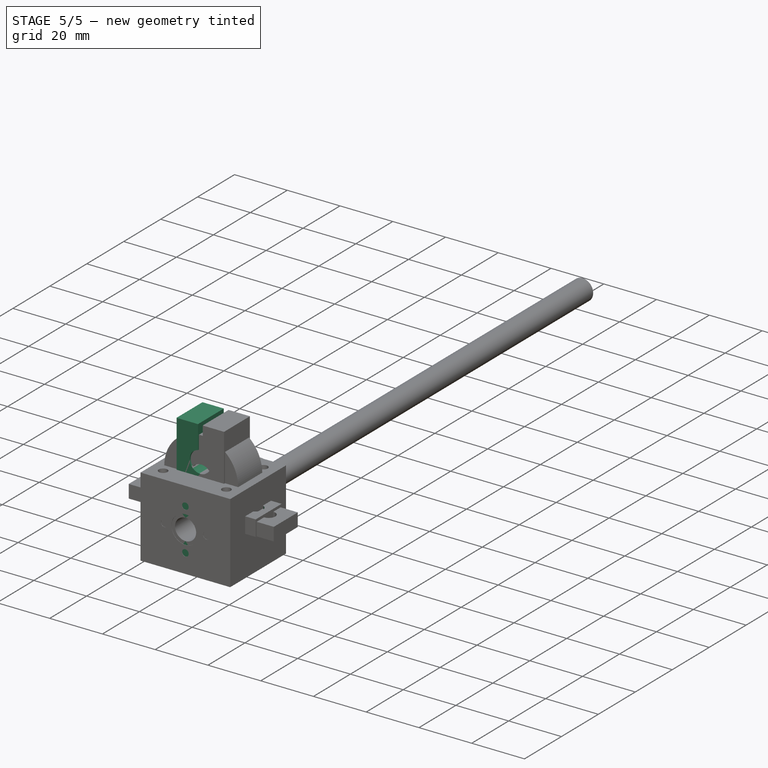
[diagram: stage 5 of 5 — iso view after this stage's code; geometry added in this stage tinted green]
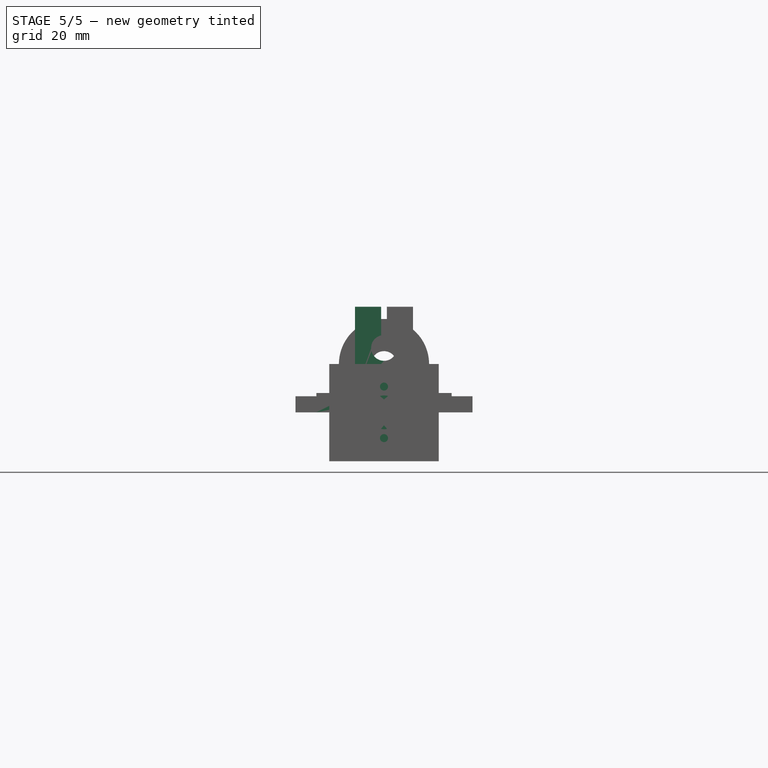
[diagram: stage 5 of 5 — front view after this stage's code; geometry added in this stage tinted green]
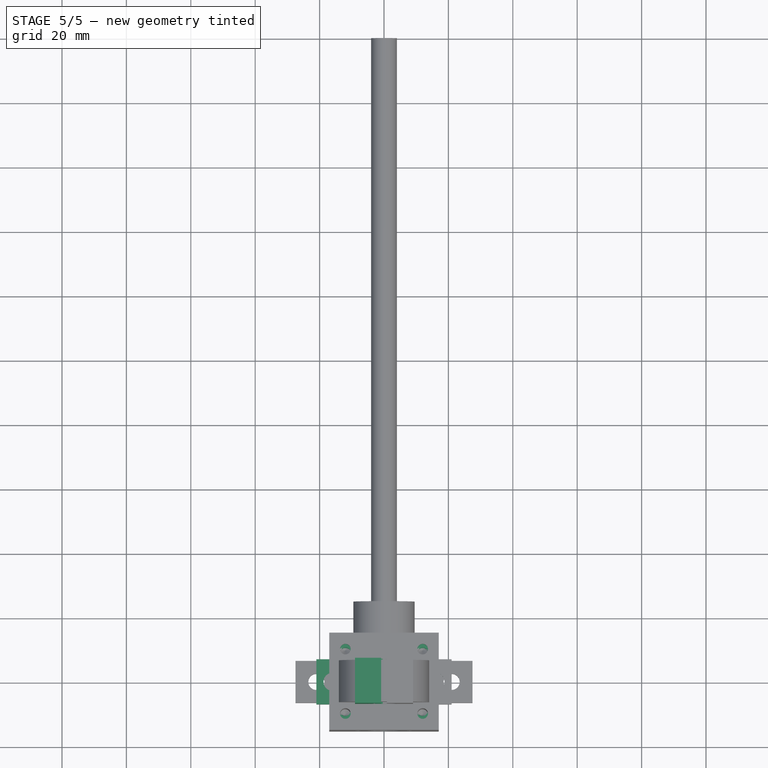
[diagram: stage 5 of 5 — top view after this stage's code; geometry added in this stage tinted green]
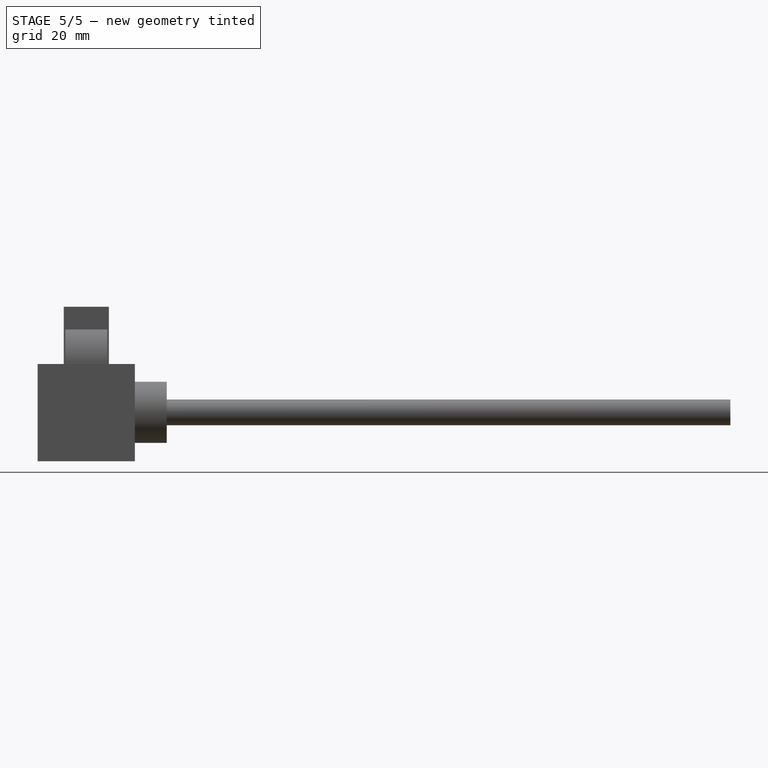
[diagram: stage 5 of 5 — right view after this stage's code; geometry added in this stage tinted green]
FEATURE [Sketcher::SketchObject] Sketch
  ArcFitTolerance = 1e-06
  AttachmentSupport = -> [XZ_Plane001]
  FullyConstrained = true
  MakeInternals = false
  MapMode = 5
  Placement = pos=(0,0,0) rot=(1,0,0;1.5708rad)
  expr: Constraints[24] = <<SCS8UU Linear Bearing Block Params>>.ShaftD
  expr: Constraints[34] = <<SCS8UU Linear Bearing Block Params>>.CenterToHoleZDiff
  sketch-geometry (13):
    g0: LineSegment StartX=0 StartY=10 StartZ=0 EndX=7 EndY=10 EndZ=0
    g1: LineSegment StartX=7 StartY=10 StartZ=0 EndX=8 EndY=11 EndZ=0
    g2: LineSegment StartX=8 StartY=11 StartZ=0 EndX=16 EndY=11 EndZ=0
    g3: LineSegment StartX=16 StartY=11 StartZ=0 EndX=17 EndY=10 EndZ=0
    g4: LineSegment StartX=17 StartY=10 StartZ=0 EndX=17 EndY=5 EndZ=0
    g5: LineSegment StartX=17 StartY=5 StartZ=0 EndX=16 EndY=4 EndZ=0
    g6: LineSegment StartX=16 StartY=4 StartZ=0 EndX=16 EndY=-7.7 EndZ=0
    g7: LineSegment StartX=16 StartY=-7.7 StartZ=0 EndX=8.9 EndY=-7.7 EndZ=0
    g8: LineSegment StartX=8.9 StartY=-7.7 StartZ=0 EndX=5.7 EndY=-11 EndZ=0
    g9: LineSegment StartX=5.7 StartY=-11 StartZ=0 EndX=-9e-16 EndY=-11 EndZ=0
    g10: LineSegment StartX=-7e-16 StartY=-11 StartZ=0 EndX=-7e-16 EndY=-4 EndZ=0
    g11: ArcOfCircle CenterX=0 CenterY=0 CenterZ=0 NormalX=0 NormalY=0 NormalZ=1 AngleXU=0 Radius=4 StartAngle=4.71239 EndAngle=7.85398
    g12: LineSegment StartX=0 StartY=4 StartZ=0 EndX=0 EndY=10 EndZ=0
  constraints (40):
    c: Coincident(g1,g0)
    c: Coincident(g2,g1)
    c: Horizontal(g2)
    c: Coincident(g3,g2)
    c: Coincident(g4,g3)
    c: Vertical(g4)
    c: Coincident(g5,g4)
    c: Coincident(g6,g5)
    c: Vertical(g6)
    c: Coincident(g7,g6)
    c: Coincident(g8,g7)
    c: Coincident(g9,g8)
    c: PointOnObject(g9,g-2)
    c: Horizontal(g9)
    c: Coincident(g10,g9)
    c: Coincident(g12,g0)
    c: Vertical(g10)
    c: Horizontal(g0)
    c: Coincident(g11,g-1)
    c: PointOnObject(g11,g12)
    c: Coincident(g10,g11)
    c: PointOnObject(g12,g11)
    c: PointOnObject(g11,g-2)
    c: Vertical(g12)
    c: Diameter(g11) = 8
    c: Horizontal(g7)
    c: Distance(g0) = 7
    c: DistanceY(g0) = 10
    c: DistanceY(g9) = -11
    c: Distance(g9) = 5.7
    c: DistanceX(g6) = 16
    c: DistanceY(g6) = -7.7
    c: DistanceY(g5) = 4
    c: Equal(g5,g3)
    c: DistanceY(g2) = 11
    c: Equal(g1,g3)
    c: DistanceX(g4) = 17
    c: Horizontal(g3,g0)
    c: Distance(g4) = 5
    c: Distance(g7) = 7.1
FEATURE [PartDesign::Pad] Pad310
  Direction = (0,-1,2e-16)
  Length = 15
  Length2 = 15
  Placement = pos=(0,0,0) rot=(1,0,0;1.5708rad)
  Profile = -> Sketch
  ReferenceAxis = -> Sketch [N_Axis]
  Refine = true
  Suppressed = false
  Type = 4
  expr: Length = <<SCS8UU Linear Bearing Block Params>>.Padding / 2
  expr: Length2 = <<SCS8UU Linear Bearing Block Params>>.Padding / 2
FEATURE [PartDesign::Mirrored] Mirrored002
  BaseFeature = -> Pad310
  MirrorPlane = -> YZ_Plane001
  Placement = pos=(0,0,0) rot=(1,0,0;1.5708rad)
  Refine = true
  Suppressed = false
  TransformMode = 1
FEATURE [PartDesign::Mirrored] Mirrored
  BaseFeature = -> Pad
  MirrorPlane = -> Sketch719 [V_Axis]
  Originals = -> [Pad]
  Placement = pos=(0,0,0) rot=(1,0,0;1.5708rad)
  Refine = true
  Suppressed = false
  TransformMode = 0
FEATURE [Sketcher::SketchObject] Sketch720
  ArcFitTolerance = 1e-06
  AttachmentSupport = -> [Mirrored]
  FullyConstrained = true
  MakeInternals = false
  MapMode = 5
  Placement = pos=(0,2.6e-15,6) rot=(0,0,1;3.14159rad)
  expr: Constraints[2] = <<SK8 Linear Shaft Support Params>>.BottomHoleDiameter
  expr: Constraints[4] = <<SK8 Linear Shaft Support Params>>.BottomHoleX
  sketch-geometry (2):
    g0: Circle CenterX=16 CenterY=0 CenterZ=0 NormalX=0 NormalY=0 NormalZ=1 AngleXU=0 Radius=2.8
    g1: Circle CenterX=-16 CenterY=0 CenterZ=0 NormalX=0 NormalY=0 NormalZ=1 AngleXU=0 Radius=2.8
  constraints (5):
    c: PointOnObject(g0,g-1)
    c: Equal(g1,g0)
    c: Diameter(g1) = 5.6
    c: Symmetric(g1,g0,g-2)
    c: DistanceX(g0) = 16
FEATURE [PartDesign::Pocket] Pocket
  BaseFeature = -> Mirrored
  Direction = (0,0,-1)
  Length = 100
  Length2 = 5
  Placement = pos=(0,0,0) rot=(1,0,0;1.5708rad)
  Profile = -> Sketch720
  ReferenceAxis = -> Sketch720 [N_Axis]
  Refine = true
  Suppressed = false
  Type = 0
FEATURE [PartDesign::Body] Body229  label="KP08 Bearing Bracket"
  AllowCompound = false
  Group = -> [Sketch721,Pad309,Mirrored001,Sketch722,Pocket253]
  Origin = -> Origin283
  Tip = -> Pocket253
FEATURE [Sketcher::SketchObject] Sketch724
  ArcFitTolerance = 1e-06
  AttachmentSupport = -> [Mirrored002]
  FullyConstrained = true
  MakeInternals = false
  MapMode = 5
  Placement = pos=(0,4.8e-15,11) rot=(0,0,1;3.14159rad)
  expr: Constraints[6] = <<SCS8UU Linear Bearing Block Params>>.HoleXD / 2
  expr: Constraints[7] = <<SCS8UU Linear Bearing Block Params>>.HoleYD
  sketch-geometry (4):
    g0: Circle CenterX=-12 CenterY=9 CenterZ=0 NormalX=0 NormalY=0 NormalZ=1 AngleXU=0 Radius=2.1
    g1: Circle CenterX=12 CenterY=9 CenterZ=0 NormalX=0 NormalY=0 NormalZ=1 AngleXU=0 Radius=2.1
    g2: Circle CenterX=12 CenterY=-9 CenterZ=0 NormalX=0 NormalY=0 NormalZ=1 AngleXU=0 Radius=2.1
    g3: Circle CenterX=-12 CenterY=-9 CenterZ=0 NormalX=0 NormalY=0 NormalZ=1 AngleXU=0 Radius=2.1
  constraints (10):
    c: Equal(g0,g1)
    c: Equal(g0,g2)
    c: Equal(g0,g3)
    c: Diameter(g0) = 4.2
    c: Symmetric(g1,g0,g-2)
    c: Vertical(g1,g2)
    c: DistanceX(g1) = 12
    c: DistanceY(g2,g1) = 18
    c: Symmetric(g1,g3,g-1)
    c: Horizontal(g2,g3)
FEATURE [PartDesign::Hole] Hole
  BaseFeature = -> Mirrored002
  CustomThreadClearance = 0
  Depth = 25
  DepthType = 0
  Diameter = 3.322
  DrillForDepth = false
  DrillPoint = 1
  DrillPointAngle = 118
  HoleCutCountersinkAngle = 90
  HoleCutCustomValues = false
  HoleCutDepth = 0
  HoleCutDiameter = 6.1
  HoleCutType = 0
  ModelThread = true
  Placement = pos=(0,0,0) rot=(1,0,0;1.5708rad)
  Profile = -> Sketch724
  Refine = true
  Suppressed = false
  Tapered = false
  TaperedAngle = 90
  ThreadClass = 0
  ThreadDepth = 25
  ThreadDepthType = 0
  ThreadDirection = 0
  ThreadFit = 0
  ThreadSize = 11
  ThreadType = 1
  Threaded = true
  UseCustomThreadClearance = false
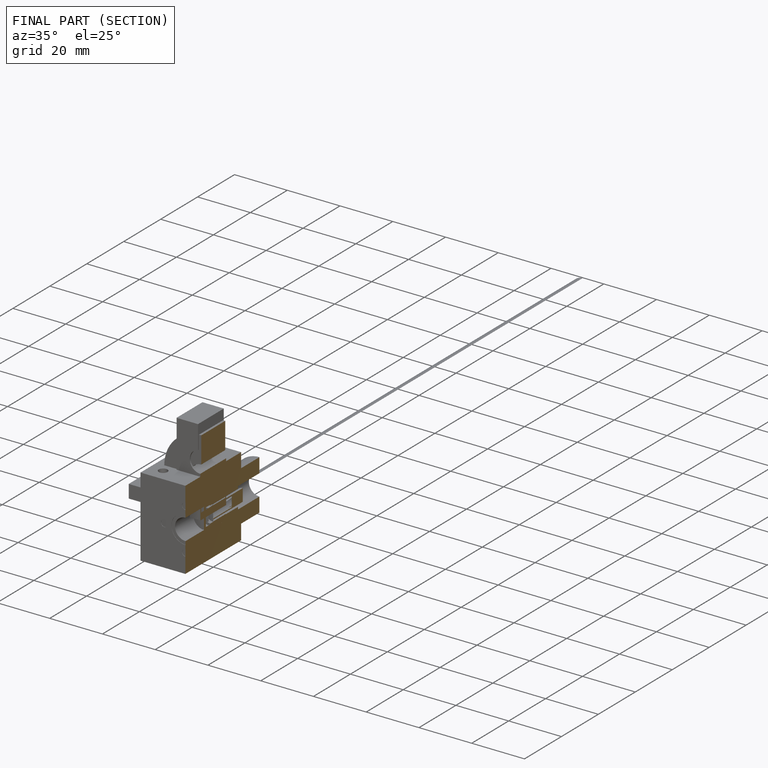
[diagram: finished part — half-section view (interior)]
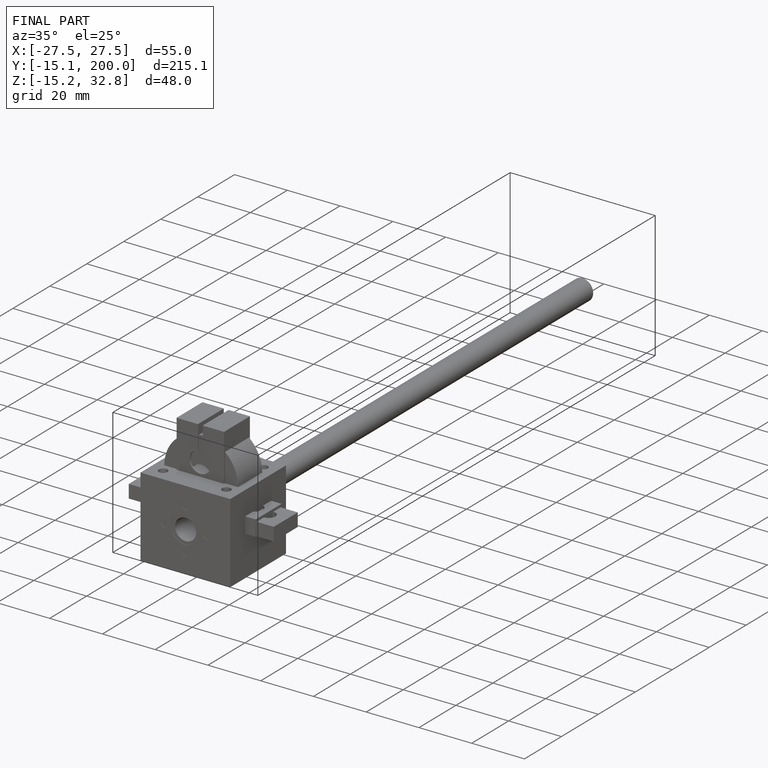
[diagram: finished part — iso view with bounding-box wireframe]
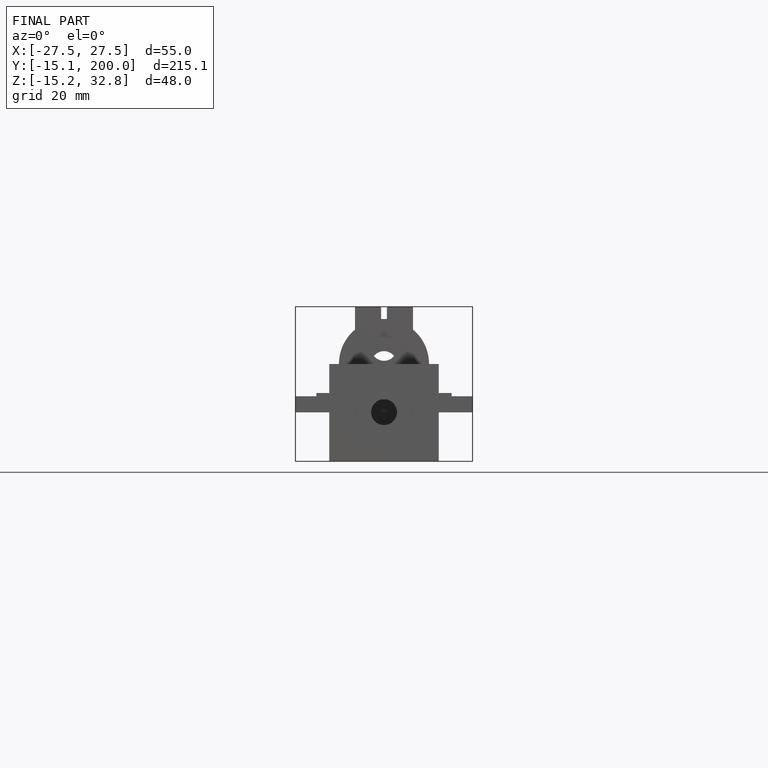
[diagram: finished part — front view with bounding-box wireframe]
